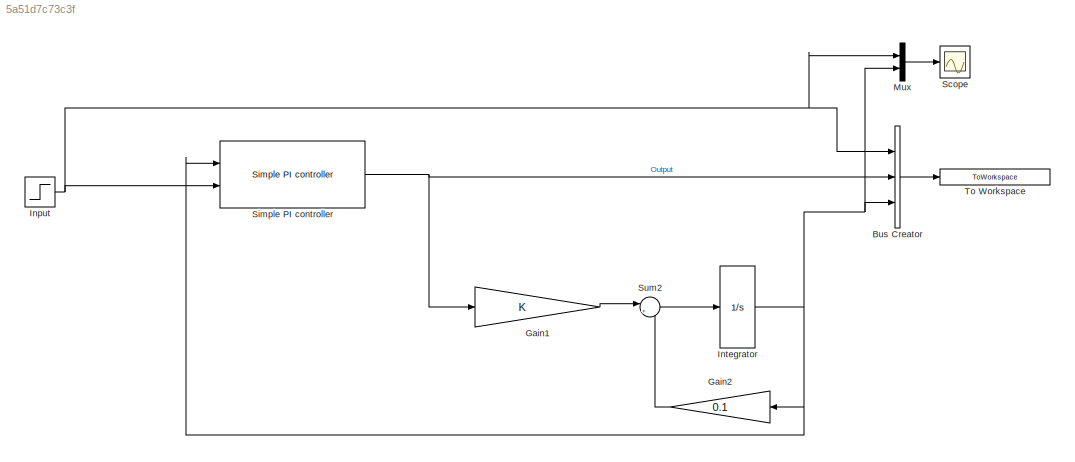
MODEL slx_5a51d7c73c3f
KIND model
CONFIG AbsTol = auto
CONFIG EnableMultiTasking = on
CONFIG FixedStep = 0.2
CONFIG MaxStep = auto
CONFIG MinStep = auto
CONFIG RelTol = 1e-3
CONFIG SampleTimeConstraint = Unconstrained
CONFIG Solver = ode4
CONFIG SolverName = ode4
CONFIG StartTime = 0.0
CONFIG StopTime = 10
BLOCK [BusCreator] Bus Creator
  DisplayOption = bar
  InheritFromInputs = on
  Inputs = 3
  Ports = [3, 1]
BLOCK [Gain] Gain1
  OutDataTypeStr = Inherit: Inherit via internal rule
  ParamDataTypeStr = Inherit: Inherit via internal rule
  SaturateOnIntegerOverflow = off
BLOCK [Gain] Gain2
  Gain = 0.1
  OutDataTypeStr = Inherit: Inherit via internal rule
  ParamDataTypeStr = Inherit: Inherit via internal rule
  SaturateOnIntegerOverflow = off
BLOCK [Step] Input
  After = MWS.ControllerPI.Inp
  Before = MWS.ControllerPI.Step_IV
  SampleTime = 0
  Time = MWS.ControllerPI.Step_Time
BLOCK [Integrator] Integrator
  InitialCondition = MWS.ControllerPI.IC
  Ports = [1, 1]
BLOCK [Mux] Mux
  DisplayOption = bar
  Inputs = 2
  Ports = [2, 1]
BLOCK [Scope] Scope
  Floating = off
  NumInputPorts = 1
  Ports = [1]
  ScopeSpecificationString = C++SS(StrPVP('Location','[362, 339, 1226, 670]'),StrPVP('Open','off'),MxPVP('AxesTitles',54,'struct(''axes1'',''%<SignalLabel>'')'),MxPVP('ScopeGraphics',57,'struct(''FigureColor'',''[0.5 0.5 0.5]'',''AxesColor'',''[0 0 0]'',''AxesTickColor'',''[1 1 1]'',''LineColors'',''[1 1 0;1 0 1;0 1 1;1 0 0;0 1 0;0 0 1]'',''LineStyles'',''-|-|-|-|-|-'',''LineWidths'',''[0.5 0.5 0.5 0.5 0.5 0.5]'',''MarkerStyl...<+240ch>
BLOCK [Reference] Simple PI controller  REF=Lib_Cntrl_SimplePIcontroller_TMATS/Simple PI controller
  Ports = [2, 1]
  SourceBlock = Lib_Cntrl_SimplePIcontroller_TMATS/Simple PI controller
  SourceType = T-MATS: Simple PI controller Library Block
BLOCK [Sum] Sum2
  IconShape = round
  InputSameDT = off
  Inputs = |+-
  OutDataTypeStr = Inherit: Inherit via internal rule
  Ports = [2, 1]
  SaturateOnIntegerOverflow = off
BLOCK [ToWorkspace] To Workspace
  MaxDataPoints = inf
  Ports = [1]
  SampleTime = -1
  VariableName = TB_Output
LINE Bus Creator:1 -> To Workspace:1
LINE Gain1:1 -> Sum2:1
LINE Gain2:1 -> Sum2:2
NET Input:1 -> Bus Creator:1, Mux:1, Simple PI controller:2
NET Integrator:1 -> Bus Creator:3, Gain2:1, Mux:2, Simple PI controller:1
LINE Mux:1 -> Scope:1
NET Simple PI controller:1 -> Bus Creator:2, Gain1:1
LINE Sum2:1 -> Integrator:1
note: NET lines group one-source signal fan-out (src -> all destinations, sorted); 1:1 wires keep LINE
